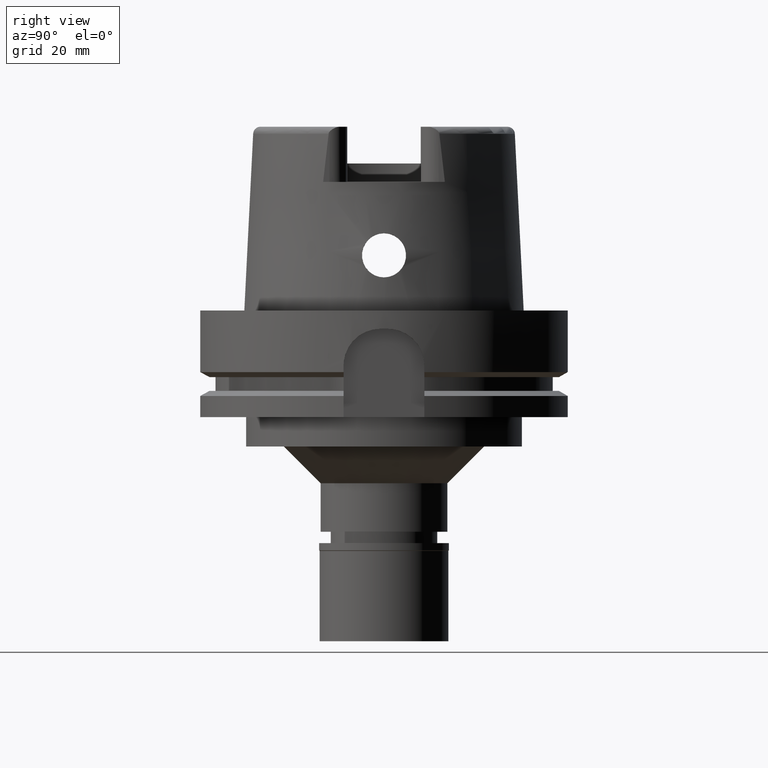
[diagram: clean part render]
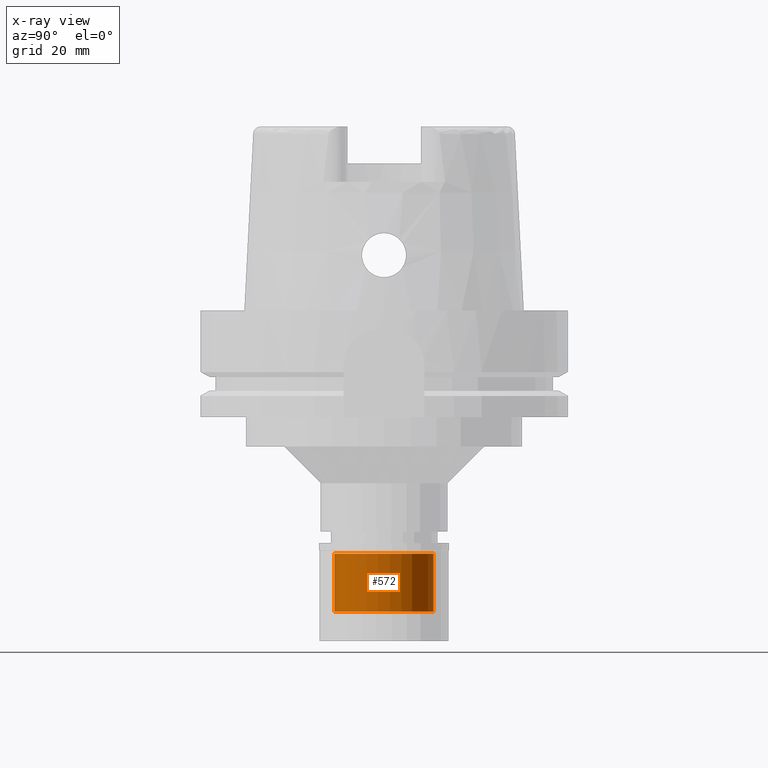
[diagram: x-ray — body ghosted, one internal face saturated and labeled with its STEP entity id]
A machine part, right view, then the same camera in x-ray: the body is ghosted and one INTERNAL B-rep face — a face not visible from any outside direction — is saturated and labeled: STEP entity #572.
In plain terms, the highlighted cylindrical surface (partial cylindrical patch) has radius 13.5 mm, axis along (0, 0, -1).
Its self-contained STEP definition (entity closure, byte-faithful):
#356 = VERTEX_POINT ( 'NONE', #2732 ) ;
#390 = DIRECTION ( 'NONE',  ( 0.0000000000000000000, 0.0000000000000000000, 1.000000000000000000 ) ) ;
#456 = ORIENTED_EDGE ( 'NONE', *, *, #4048, .F. ) ;
#547 = AXIS2_PLACEMENT_3D ( 'NONE', #2491, #5509, #1194 ) ;
#572 = ADVANCED_FACE ( 'NONE', ( #2818 ), #1473, .F. ) ;
#776 = VERTEX_POINT ( 'NONE', #2731 ) ;
#863 = CARTESIAN_POINT ( 'NONE',  ( 0.0000000000000000000, 13.50000000000000000, -18.70000000000000284 ) ) ;
#906 = CARTESIAN_POINT ( 'NONE',  ( 0.0000000000000000000, 13.50000000000000000, -18.70000000000000284 ) ) ;
#1003 = DIRECTION ( 'NONE',  ( 0.0000000000000000000, 0.0000000000000000000, -1.000000000000000000 ) ) ;
#1051 = DIRECTION ( 'NONE',  ( 0.0000000000000000000, 0.0000000000000000000, -1.000000000000000000 ) ) ;
#1062 = ORIENTED_EDGE ( 'NONE', *, *, #4017, .T. ) ;
#1128 = CARTESIAN_POINT ( 'NONE',  ( 0.0000000000000000000, 0.0000000000000000000, 0.0000000000000000000 ) ) ;
#1194 = DIRECTION ( 'NONE',  ( 0.0000000000000000000, -1.000000000000000000, 0.0000000000000000000 ) ) ;
#1200 = CIRCLE ( 'NONE', #4449, 13.50000000000000000 ) ;
#1255 = EDGE_CURVE ( 'NONE', #356, #776, #2856, .T. ) ;
#1287 = LINE ( 'NONE', #863, #3272 ) ;
#1398 = DIRECTION ( 'NONE',  ( 0.0000000000000000000, 1.000000000000000000, 0.0000000000000000000 ) ) ;
#1465 = EDGE_LOOP ( 'NONE', ( #2363, #1062, #3638, #456 ) ) ;
#1473 = CYLINDRICAL_SURFACE ( 'NONE', #1947, 13.50000000000000000 ) ;
#1648 = VECTOR ( 'NONE', #3769, 1000.000000000000000 ) ;
#1947 = AXIS2_PLACEMENT_3D ( 'NONE', #1128, #1051, #2767 ) ;
#2092 = LINE ( 'NONE', #3370, #1648 ) ;
#2363 = ORIENTED_EDGE ( 'NONE', *, *, #4179, .T. ) ;
#2491 = CARTESIAN_POINT ( 'NONE',  ( 0.0000000000000000000, 0.0000000000000000000, -2.899999999999999911 ) ) ;
#2731 = CARTESIAN_POINT ( 'NONE',  ( 0.0000000000000000000, 13.50000000000000000, -2.899999999999999911 ) ) ;
#2732 = CARTESIAN_POINT ( 'NONE',  ( 0.0000000000000000000, -13.50000000000000000, -2.899999999999999911 ) ) ;
#2767 = DIRECTION ( 'NONE',  ( 0.0000000000000000000, -1.000000000000000000, 0.0000000000000000000 ) ) ;
#2818 = FACE_OUTER_BOUND ( 'NONE', #1465, .T. ) ;
#2856 = CIRCLE ( 'NONE', #547, 13.50000000000000000 ) ;
#3014 = VERTEX_POINT ( 'NONE', #4748 ) ;
#3272 = VECTOR ( 'NONE', #390, 1000.000000000000000 ) ;
#3370 = CARTESIAN_POINT ( 'NONE',  ( 0.0000000000000000000, -13.50000000000000000, -18.70000000000000284 ) ) ;
#3516 = CARTESIAN_POINT ( 'NONE',  ( 0.0000000000000000000, 0.0000000000000000000, -18.70000000000000284 ) ) ;
#3638 = ORIENTED_EDGE ( 'NONE', *, *, #1255, .T. ) ;
#3769 = DIRECTION ( 'NONE',  ( 0.0000000000000000000, 0.0000000000000000000, 1.000000000000000000 ) ) ;
#4017 = EDGE_CURVE ( 'NONE', #3014, #356, #2092, .T. ) ;
#4048 = EDGE_CURVE ( 'NONE', #5007, #776, #1287, .T. ) ;
#4179 = EDGE_CURVE ( 'NONE', #5007, #3014, #1200, .T. ) ;
#4449 = AXIS2_PLACEMENT_3D ( 'NONE', #3516, #1003, #1398 ) ;
#4748 = CARTESIAN_POINT ( 'NONE',  ( 0.0000000000000000000, -13.50000000000000000, -18.70000000000000284 ) ) ;
#5007 = VERTEX_POINT ( 'NONE', #906 ) ;
#5509 = DIRECTION ( 'NONE',  ( 0.0000000000000000000, 0.0000000000000000000, 1.000000000000000000 ) ) ;